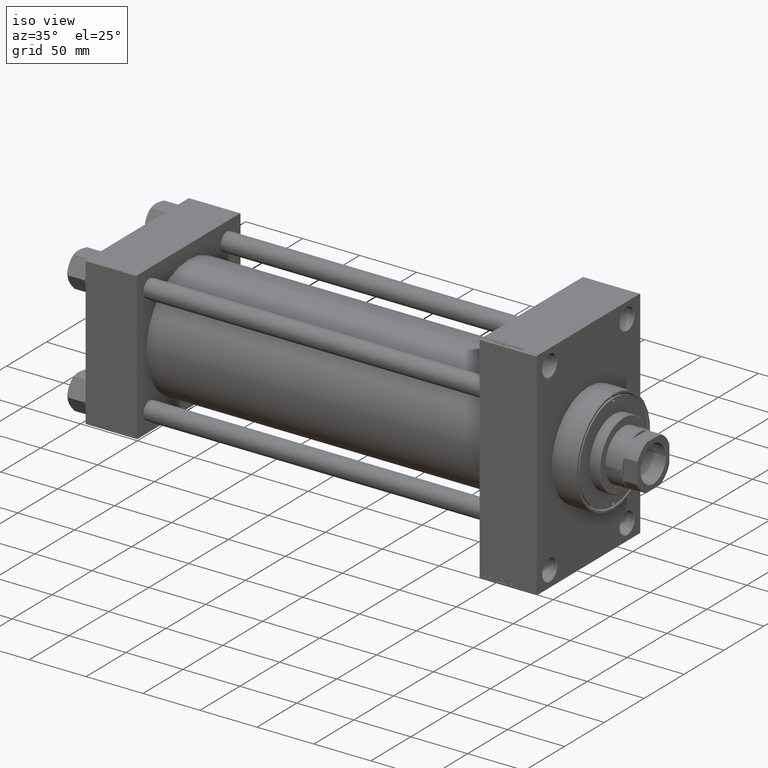
[diagram: clean part render]
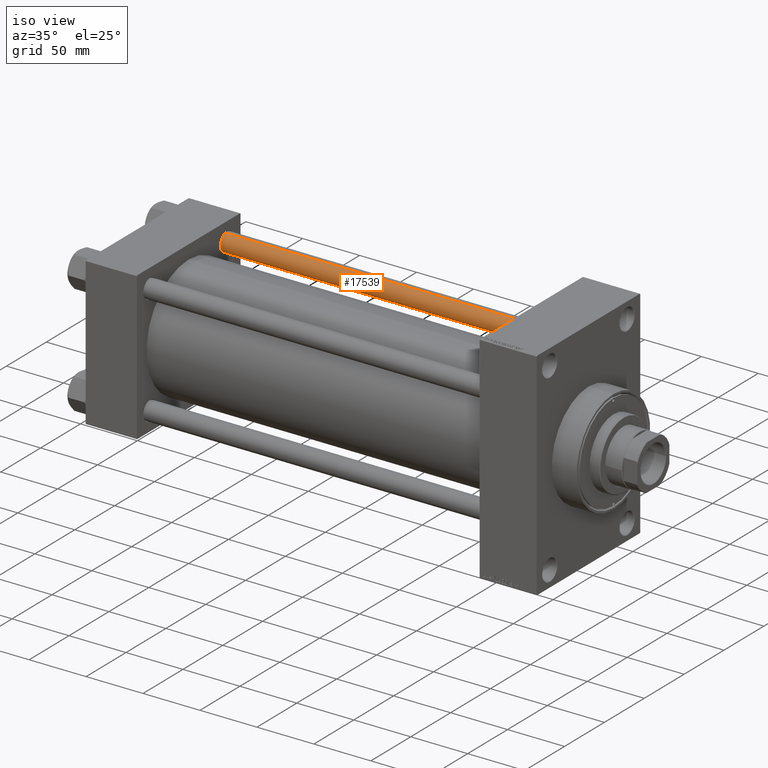
[diagram: same view with one face highlighted and labeled with its STEP entity id]
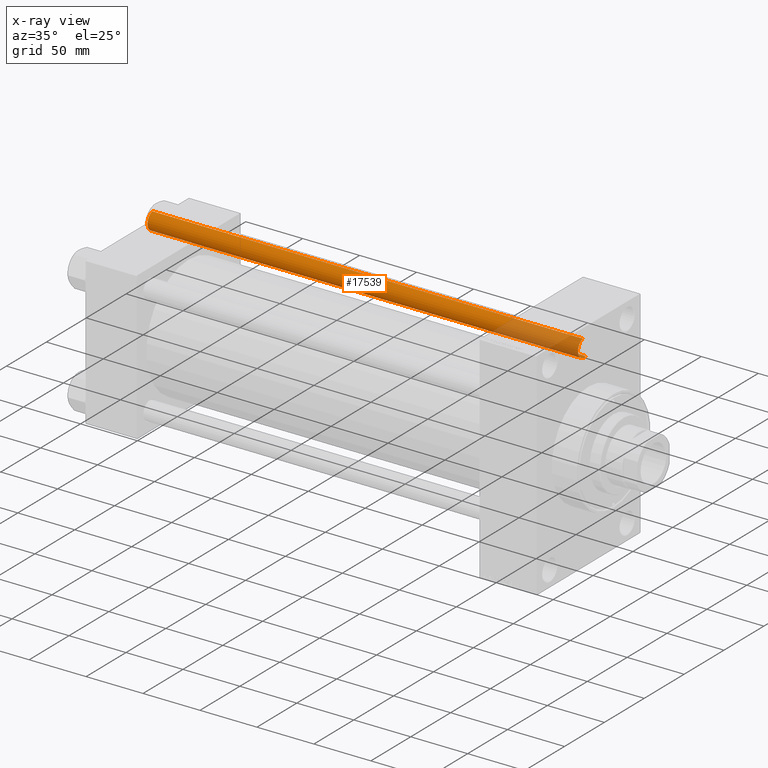
[diagram: x-ray of the same camera — body ghosted, the highlighted face saturated]
A machine part, iso view. The second image highlights one B-rep face of the part: STEP entity #17539.
The next image is the same camera in x-ray: the body ghosted, the highlighted face saturated — about 18% of this face is hidden behind the body in this view.
In plain terms, the highlighted cylindrical surface (edge-blend (fillet) strip) has radius 8 mm, axis along (-1, -0, 0).
Its self-contained STEP definition (entity closure, byte-faithful):
#212 = ORIENTED_EDGE ( 'NONE', *, *, #24535, .T. ) ;
#307 = EDGE_CURVE ( 'NONE', #11305, #44201, #17795, .T. ) ;
#2901 = CARTESIAN_POINT ( 'NONE',  ( 8.000000000000000000, 9.797174393178825657E-16, 0.4999999999998894218 ) ) ;
#3609 = ORIENTED_EDGE ( 'NONE', *, *, #10710, .T. ) ;
#7498 = AXIS2_PLACEMENT_3D ( 'NONE', #34805, #37962, #23179 ) ;
#8842 = ORIENTED_EDGE ( 'NONE', *, *, #307, .F. ) ;
#10710 = EDGE_CURVE ( 'NONE', #38385, #44201, #41413, .T. ) ;
#11305 = VERTEX_POINT ( 'NONE', #43003 ) ;
#14336 = AXIS2_PLACEMENT_3D ( 'NONE', #25795, #40578, #30852 ) ;
#14709 = VECTOR ( 'NONE', #43479, 1000.000000000000000 ) ;
#17499 = AXIS2_PLACEMENT_3D ( 'NONE', #35726, #27738, #24569 ) ;
#17539 = ADVANCED_FACE ( 'NONE', ( #20947 ), #32326, .T. ) ;
#17795 = LINE ( 'NONE', #28717, #14709 ) ;
#18212 = CARTESIAN_POINT ( 'NONE',  ( -8.000000000000000000, 0.000000000000000000, 379.0000000000000000 ) ) ;
#18350 = VERTEX_POINT ( 'NONE', #32333 ) ;
#19133 = EDGE_CURVE ( 'NONE', #11305, #18350, #33007, .T. ) ;
#20947 = FACE_OUTER_BOUND ( 'NONE', #24905, .T. ) ;
#22846 = CARTESIAN_POINT ( 'NONE',  ( -8.000000000000000000, 0.000000000000000000, 0.4999999999998894218 ) ) ;
#23179 = DIRECTION ( 'NONE',  ( 1.000000000000000000, 0.000000000000000000, 0.000000000000000000 ) ) ;
#24535 = EDGE_CURVE ( 'NONE', #18350, #38385, #33486, .T. ) ;
#24569 = DIRECTION ( 'NONE',  ( -1.000000000000000000, 0.000000000000000000, 0.000000000000000000 ) ) ;
#24905 = EDGE_LOOP ( 'NONE', ( #8842, #26071, #212, #3609 ) ) ;
#25795 = CARTESIAN_POINT ( 'NONE',  ( 0.000000000000000000, 0.000000000000000000, 0.4999999999998894218 ) ) ;
#26071 = ORIENTED_EDGE ( 'NONE', *, *, #19133, .T. ) ;
#27738 = DIRECTION ( 'NONE',  ( -0.000000000000000000, -0.000000000000000000, -1.000000000000000000 ) ) ;
#28717 = CARTESIAN_POINT ( 'NONE',  ( 8.000000000000000000, 9.797174393178825657E-16, 379.0000000000000000 ) ) ;
#30852 = DIRECTION ( 'NONE',  ( 1.000000000000000000, 0.000000000000000000, 0.000000000000000000 ) ) ;
#32326 = CYLINDRICAL_SURFACE ( 'NONE', #17499, 8.000000000000000000 ) ;
#32333 = CARTESIAN_POINT ( 'NONE',  ( -8.000000000000000000, 0.000000000000000000, 378.4999999999999432 ) ) ;
#32761 = DIRECTION ( 'NONE',  ( -0.000000000000000000, -0.000000000000000000, -1.000000000000000000 ) ) ;
#33007 = CIRCLE ( 'NONE', #7498, 8.000000000000000000 ) ;
#33486 = LINE ( 'NONE', #18212, #37830 ) ;
#34805 = CARTESIAN_POINT ( 'NONE',  ( 0.000000000000000000, 0.000000000000000000, 378.4999999999999432 ) ) ;
#35726 = CARTESIAN_POINT ( 'NONE',  ( 0.000000000000000000, 0.000000000000000000, 379.0000000000000000 ) ) ;
#37830 = VECTOR ( 'NONE', #32761, 1000.000000000000000 ) ;
#37962 = DIRECTION ( 'NONE',  ( 0.000000000000000000, 0.000000000000000000, -1.000000000000000000 ) ) ;
#38385 = VERTEX_POINT ( 'NONE', #22846 ) ;
#40578 = DIRECTION ( 'NONE',  ( -0.000000000000000000, -0.000000000000000000, 1.000000000000000000 ) ) ;
#41413 = CIRCLE ( 'NONE', #14336, 8.000000000000000000 ) ;
#43003 = CARTESIAN_POINT ( 'NONE',  ( 8.000000000000000000, 9.797174393178825657E-16, 378.4999999999999432 ) ) ;
#43479 = DIRECTION ( 'NONE',  ( -0.000000000000000000, -0.000000000000000000, -1.000000000000000000 ) ) ;
#44201 = VERTEX_POINT ( 'NONE', #2901 ) ;